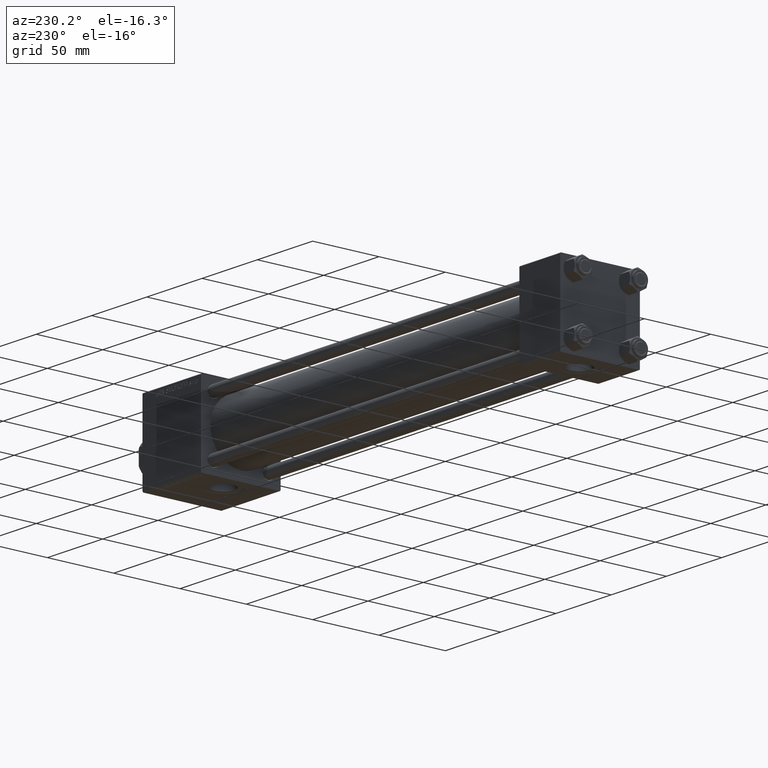
[diagram: clean part render]
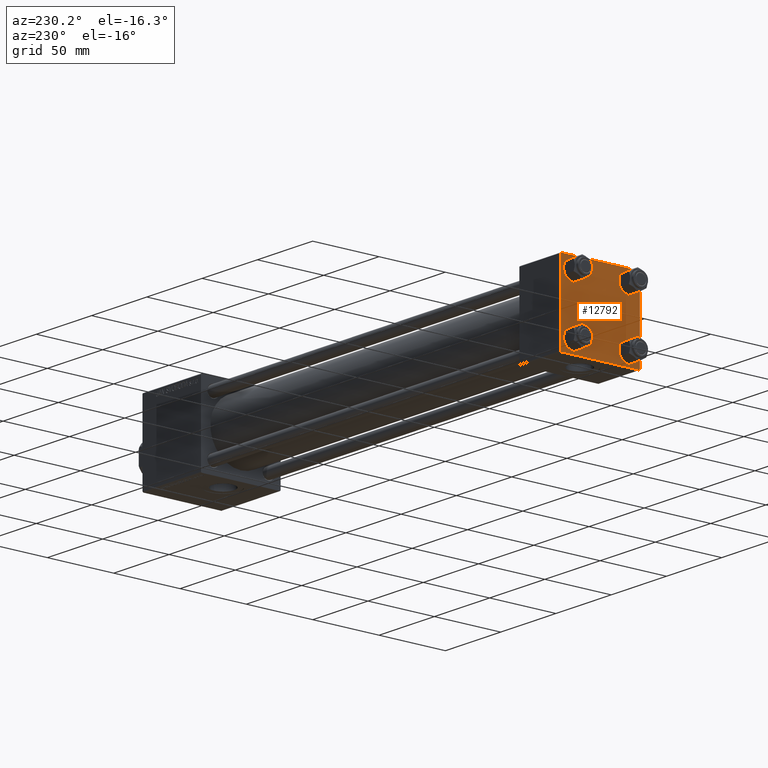
[diagram: same view with one face highlighted and labeled with its STEP entity id]
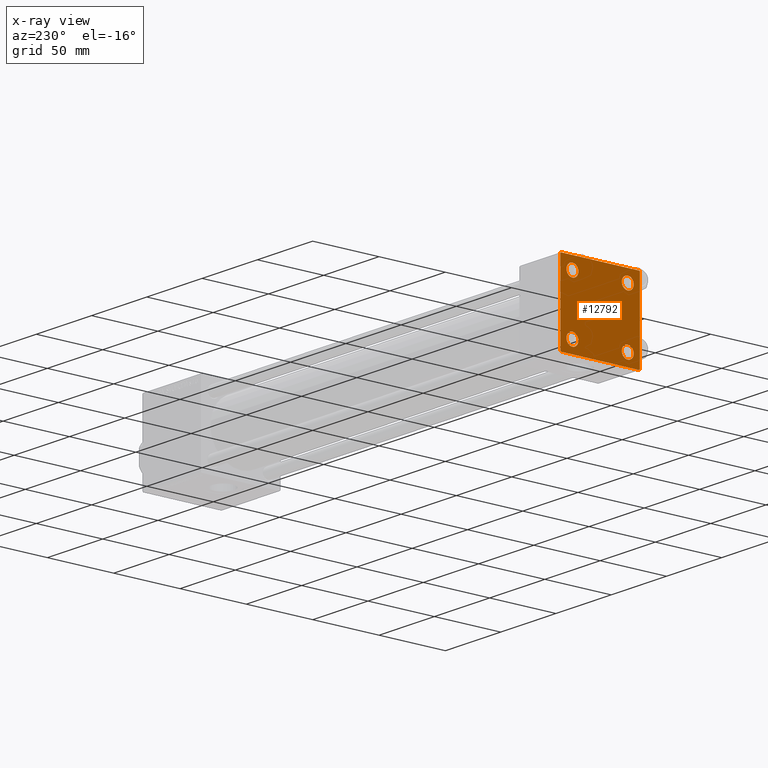
[diagram: x-ray of the same camera — body ghosted, the highlighted face saturated]
A machine part, auxiliary view. The second image highlights one B-rep face of the part: STEP entity #12792.
The next image is the same camera in x-ray: the body ghosted, the highlighted face saturated — about 0% of this face is hidden behind the body in this view.
In plain terms, the highlighted planar face has unit normal (-1, 0, 0).
Its self-contained STEP definition (entity closure, byte-faithful):
#17 = FACE_BOUND ( 'NONE', #5632, .T. ) ;
#619 = EDGE_CURVE ( 'NONE', #13524, #4512, #3954, .T. ) ;
#956 = EDGE_LOOP ( 'NONE', ( #42140, #7351, #2745, #31288, #7093, #26805, #4026, #45420 ) ) ;
#1490 = ORIENTED_EDGE ( 'NONE', *, *, #15973, .T. ) ;
#1701 = AXIS2_PLACEMENT_3D ( 'NONE', #34664, #47091, #23710 ) ;
#1746 = DIRECTION ( 'NONE',  ( 0.000000000000000000, 0.000000000000000000, 1.000000000000000000 ) ) ;
#2745 = ORIENTED_EDGE ( 'NONE', *, *, #37012, .T. ) ;
#3108 = DIRECTION ( 'NONE',  ( 0.000000000000000000, 0.000000000000000000, 1.000000000000000000 ) ) ;
#3454 = DIRECTION ( 'NONE',  ( 0.000000000000000000, -1.000000000000000000, -1.156482317317871725E-16 ) ) ;
#3516 = EDGE_LOOP ( 'NONE', ( #9679, #1490 ) ) ;
#3573 = FACE_BOUND ( 'NONE', #3516, .T. ) ;
#3954 = LINE ( 'NONE', #19653, #26514 ) ;
#4026 = ORIENTED_EDGE ( 'NONE', *, *, #38693, .F. ) ;
#4091 = CARTESIAN_POINT ( 'NONE',  ( 0.000000000000000000, 29.74999999999999645, 29.74999999999999645 ) ) ;
#4400 = CIRCLE ( 'NONE', #14120, 4.500000000000017764 ) ;
#4512 = VERTEX_POINT ( 'NONE', #24511 ) ;
#4804 = CARTESIAN_POINT ( 'NONE',  ( 0.000000000000000000, 20.84999999999999787, -20.85000000000000142 ) ) ;
#4844 = DIRECTION ( 'NONE',  ( 1.000000000000000000, -0.000000000000000000, 0.000000000000000000 ) ) ;
#5092 = DIRECTION ( 'NONE',  ( 1.000000000000000000, -0.000000000000000000, 0.000000000000000000 ) ) ;
#5291 = DIRECTION ( 'NONE',  ( 1.000000000000000000, -0.000000000000000000, 0.000000000000000000 ) ) ;
#5552 = CARTESIAN_POINT ( 'NONE',  ( 0.000000000000000000, 29.99999999999999289, 30.00000000000000000 ) ) ;
#5632 = EDGE_LOOP ( 'NONE', ( #39562, #23354 ) ) ;
#5745 = EDGE_CURVE ( 'NONE', #4512, #37535, #37678, .T. ) ;
#5783 = AXIS2_PLACEMENT_3D ( 'NONE', #19374, #7958, #27255 ) ;
#6686 = EDGE_LOOP ( 'NONE', ( #43654, #48863 ) ) ;
#6703 = AXIS2_PLACEMENT_3D ( 'NONE', #8898, #5092, #20817 ) ;
#7093 = ORIENTED_EDGE ( 'NONE', *, *, #34665, .F. ) ;
#7121 = DIRECTION ( 'NONE',  ( 1.000000000000000000, -0.000000000000000000, 0.000000000000000000 ) ) ;
#7351 = ORIENTED_EDGE ( 'NONE', *, *, #5745, .T. ) ;
#7603 = FACE_BOUND ( 'NONE', #6686, .T. ) ;
#7853 = EDGE_LOOP ( 'NONE', ( #23532, #39300 ) ) ;
#7863 = CIRCLE ( 'NONE', #31349, 4.500000000000017764 ) ;
#7958 = DIRECTION ( 'NONE',  ( 1.000000000000000000, -0.000000000000000000, 0.000000000000000000 ) ) ;
#8179 = CIRCLE ( 'NONE', #1701, 4.500000000000017764 ) ;
#8371 = VECTOR ( 'NONE', #47867, 1000.000000000000114 ) ;
#8407 = EDGE_CURVE ( 'NONE', #40028, #48465, #38736, .T. ) ;
#8898 = CARTESIAN_POINT ( 'NONE',  ( 0.000000000000000000, -20.84999999999999076, 20.85000000000000497 ) ) ;
#9617 = CARTESIAN_POINT ( 'NONE',  ( 0.000000000000000000, 29.49999999999999289, 30.00000000000000000 ) ) ;
#9679 = ORIENTED_EDGE ( 'NONE', *, *, #12724, .T. ) ;
#9848 = DIRECTION ( 'NONE',  ( 0.000000000000000000, 0.000000000000000000, -1.000000000000000000 ) ) ;
#10101 = CARTESIAN_POINT ( 'NONE',  ( 0.000000000000000000, -30.00000000000000000, 29.99999999999999289 ) ) ;
#10162 = CARTESIAN_POINT ( 'NONE',  ( 0.000000000000000000, 20.84999999999999787, -20.85000000000000142 ) ) ;
#10410 = DIRECTION ( 'NONE',  ( 0.000000000000000000, 0.000000000000000000, 1.000000000000000000 ) ) ;
#10425 = DIRECTION ( 'NONE',  ( 0.000000000000000000, 0.000000000000000000, 1.000000000000000000 ) ) ;
#10678 = VECTOR ( 'NONE', #9848, 1000.000000000000000 ) ;
#11036 = LINE ( 'NONE', #10101, #10678 ) ;
#11315 = CARTESIAN_POINT ( 'NONE',  ( 0.000000000000000000, -20.84999999999999076, 25.35000000000002274 ) ) ;
#11599 = VECTOR ( 'NONE', #31838, 1000.000000000000114 ) ;
#11895 = EDGE_CURVE ( 'NONE', #47679, #17020, #4400, .T. ) ;
#12092 = VERTEX_POINT ( 'NONE', #9617 ) ;
#12467 = VERTEX_POINT ( 'NONE', #41242 ) ;
#12724 = EDGE_CURVE ( 'NONE', #44260, #21782, #35208, .T. ) ;
#12792 = ADVANCED_FACE ( 'NONE', ( #7603, #17, #3573, #46230, #45980 ), #46477, .T. ) ;
#12886 = VERTEX_POINT ( 'NONE', #20270 ) ;
#13524 = VERTEX_POINT ( 'NONE', #23225 ) ;
#13776 = CARTESIAN_POINT ( 'NONE',  ( 0.000000000000000000, 29.74999999999957723, -29.75000000000040501 ) ) ;
#14120 = AXIS2_PLACEMENT_3D ( 'NONE', #34051, #7121, #10425 ) ;
#14898 = VERTEX_POINT ( 'NONE', #20860 ) ;
#15027 = AXIS2_PLACEMENT_3D ( 'NONE', #4804, #5291, #1746 ) ;
#15209 = DIRECTION ( 'NONE',  ( -0.000000000000000000, 0.000000000000000000, 1.000000000000000000 ) ) ;
#15336 = CARTESIAN_POINT ( 'NONE',  ( 0.000000000000000000, -29.75000000000001066, -29.75000000000001066 ) ) ;
#15973 = EDGE_CURVE ( 'NONE', #21782, #44260, #41825, .T. ) ;
#17020 = VERTEX_POINT ( 'NONE', #39558 ) ;
#19124 = EDGE_CURVE ( 'NONE', #12092, #13524, #42453, .T. ) ;
#19374 = CARTESIAN_POINT ( 'NONE',  ( 0.000000000000000000, -20.84999999999999076, -20.85000000000000497 ) ) ;
#19547 = DIRECTION ( 'NONE',  ( 0.000000000000000000, 0.7071067811865474617, -0.7071067811865474617 ) ) ;
#19653 = CARTESIAN_POINT ( 'NONE',  ( 0.000000000000000000, 29.99999999999999289, 30.00000000000000000 ) ) ;
#20270 = CARTESIAN_POINT ( 'NONE',  ( 0.000000000000000000, -30.00000000000000000, 29.49999999999999289 ) ) ;
#20817 = DIRECTION ( 'NONE',  ( 0.000000000000000000, 0.000000000000000000, 1.000000000000000000 ) ) ;
#20860 = CARTESIAN_POINT ( 'NONE',  ( 0.000000000000000000, -20.84999999999999076, -16.34999999999998721 ) ) ;
#21434 = LINE ( 'NONE', #47615, #8371 ) ;
#21539 = LINE ( 'NONE', #5552, #43918 ) ;
#21782 = VERTEX_POINT ( 'NONE', #39143 ) ;
#21895 = EDGE_CURVE ( 'NONE', #14898, #45606, #7863, .T. ) ;
#22381 = CARTESIAN_POINT ( 'NONE',  ( 0.000000000000000000, 20.84999999999999787, 16.34999999999998366 ) ) ;
#22594 = CARTESIAN_POINT ( 'NONE',  ( 0.000000000000000000, 0.000000000000000000, 0.000000000000000000 ) ) ;
#23225 = CARTESIAN_POINT ( 'NONE',  ( 0.000000000000000000, 29.99999999999999289, 29.50000000000000000 ) ) ;
#23354 = ORIENTED_EDGE ( 'NONE', *, *, #32758, .T. ) ;
#23469 = VECTOR ( 'NONE', #49104, 999.9999999999998863 ) ;
#23532 = ORIENTED_EDGE ( 'NONE', *, *, #26492, .T. ) ;
#23710 = DIRECTION ( 'NONE',  ( 0.000000000000000000, 0.000000000000000000, 1.000000000000000000 ) ) ;
#23874 = CARTESIAN_POINT ( 'NONE',  ( 0.000000000000000000, 20.84999999999999787, -16.34999999999998366 ) ) ;
#24196 = CIRCLE ( 'NONE', #41276, 4.500000000000017764 ) ;
#24511 = CARTESIAN_POINT ( 'NONE',  ( 0.000000000000000000, 29.99999999999999289, -29.50000000000000000 ) ) ;
#25094 = CARTESIAN_POINT ( 'NONE',  ( 0.000000000000000000, -20.84999999999999076, -25.35000000000002274 ) ) ;
#25656 = DIRECTION ( 'NONE',  ( 1.000000000000000000, -0.000000000000000000, 0.000000000000000000 ) ) ;
#26490 = VECTOR ( 'NONE', #19547, 1000.000000000000114 ) ;
#26492 = EDGE_CURVE ( 'NONE', #12467, #44147, #24196, .T. ) ;
#26514 = VECTOR ( 'NONE', #27288, 1000.000000000000000 ) ;
#26805 = ORIENTED_EDGE ( 'NONE', *, *, #43209, .T. ) ;
#26939 = VECTOR ( 'NONE', #3454, 1000.000000000000000 ) ;
#27042 = CARTESIAN_POINT ( 'NONE',  ( 0.000000000000000000, 29.99999999999999289, -30.00000000000000000 ) ) ;
#27255 = DIRECTION ( 'NONE',  ( 0.000000000000000000, 0.000000000000000000, 1.000000000000000000 ) ) ;
#27288 = DIRECTION ( 'NONE',  ( 0.000000000000000000, 0.000000000000000000, -1.000000000000000000 ) ) ;
#29911 = DIRECTION ( 'NONE',  ( 0.000000000000000000, -1.000000000000000000, -1.156482317317871725E-16 ) ) ;
#30421 = VERTEX_POINT ( 'NONE', #34881 ) ;
#31288 = ORIENTED_EDGE ( 'NONE', *, *, #8407, .T. ) ;
#31349 = AXIS2_PLACEMENT_3D ( 'NONE', #40147, #4844, #35830 ) ;
#31838 = DIRECTION ( 'NONE',  ( 0.000000000000000000, -0.7071067811865474617, 0.7071067811865474617 ) ) ;
#32758 = EDGE_CURVE ( 'NONE', #45606, #14898, #47951, .T. ) ;
#33051 = CARTESIAN_POINT ( 'NONE',  ( 0.000000000000000000, 29.49999999999997868, -30.00000000000000000 ) ) ;
#34051 = CARTESIAN_POINT ( 'NONE',  ( 0.000000000000000000, -20.84999999999999076, 20.85000000000000497 ) ) ;
#34664 = CARTESIAN_POINT ( 'NONE',  ( 0.000000000000000000, 20.84999999999999787, 20.85000000000000142 ) ) ;
#34665 = EDGE_CURVE ( 'NONE', #12886, #48465, #11036, .T. ) ;
#34881 = CARTESIAN_POINT ( 'NONE',  ( 0.000000000000000000, -29.49999999999998579, 29.99999999999999289 ) ) ;
#34888 = EDGE_CURVE ( 'NONE', #44147, #12467, #8179, .T. ) ;
#35208 = CIRCLE ( 'NONE', #41715, 4.500000000000017764 ) ;
#35830 = DIRECTION ( 'NONE',  ( 0.000000000000000000, 0.000000000000000000, 1.000000000000000000 ) ) ;
#37012 = EDGE_CURVE ( 'NONE', #37535, #40028, #49420, .T. ) ;
#37535 = VERTEX_POINT ( 'NONE', #33051 ) ;
#37542 = CIRCLE ( 'NONE', #6703, 4.500000000000017764 ) ;
#37678 = LINE ( 'NONE', #13776, #23469 ) ;
#38693 = EDGE_CURVE ( 'NONE', #12092, #30421, #21539, .T. ) ;
#38736 = LINE ( 'NONE', #15336, #11599 ) ;
#38861 = DIRECTION ( 'NONE',  ( -1.000000000000000000, 0.000000000000000000, -0.000000000000000000 ) ) ;
#39143 = CARTESIAN_POINT ( 'NONE',  ( 0.000000000000000000, 20.84999999999999787, -25.35000000000001918 ) ) ;
#39300 = ORIENTED_EDGE ( 'NONE', *, *, #34888, .T. ) ;
#39321 = AXIS2_PLACEMENT_3D ( 'NONE', #22594, #38861, #15209 ) ;
#39558 = CARTESIAN_POINT ( 'NONE',  ( 0.000000000000000000, -20.84999999999999076, 16.34999999999998721 ) ) ;
#39562 = ORIENTED_EDGE ( 'NONE', *, *, #21895, .T. ) ;
#40028 = VERTEX_POINT ( 'NONE', #49121 ) ;
#40147 = CARTESIAN_POINT ( 'NONE',  ( 0.000000000000000000, -20.84999999999999076, -20.85000000000000497 ) ) ;
#41242 = CARTESIAN_POINT ( 'NONE',  ( 0.000000000000000000, 20.84999999999999787, 25.35000000000001918 ) ) ;
#41276 = AXIS2_PLACEMENT_3D ( 'NONE', #49568, #42705, #3108 ) ;
#41715 = AXIS2_PLACEMENT_3D ( 'NONE', #10162, #25656, #10410 ) ;
#41825 = CIRCLE ( 'NONE', #15027, 4.500000000000017764 ) ;
#42140 = ORIENTED_EDGE ( 'NONE', *, *, #619, .T. ) ;
#42200 = EDGE_CURVE ( 'NONE', #17020, #47679, #37542, .T. ) ;
#42453 = LINE ( 'NONE', #4091, #26490 ) ;
#42705 = DIRECTION ( 'NONE',  ( 1.000000000000000000, -0.000000000000000000, 0.000000000000000000 ) ) ;
#43122 = CARTESIAN_POINT ( 'NONE',  ( 0.000000000000000000, -30.00000000000000000, -29.50000000000001776 ) ) ;
#43209 = EDGE_CURVE ( 'NONE', #12886, #30421, #21434, .T. ) ;
#43654 = ORIENTED_EDGE ( 'NONE', *, *, #11895, .T. ) ;
#43918 = VECTOR ( 'NONE', #29911, 1000.000000000000000 ) ;
#44147 = VERTEX_POINT ( 'NONE', #22381 ) ;
#44260 = VERTEX_POINT ( 'NONE', #23874 ) ;
#45420 = ORIENTED_EDGE ( 'NONE', *, *, #19124, .T. ) ;
#45606 = VERTEX_POINT ( 'NONE', #25094 ) ;
#45980 = FACE_OUTER_BOUND ( 'NONE', #956, .T. ) ;
#46230 = FACE_BOUND ( 'NONE', #7853, .T. ) ;
#46477 = PLANE ( 'NONE',  #39321 ) ;
#47091 = DIRECTION ( 'NONE',  ( 1.000000000000000000, -0.000000000000000000, 0.000000000000000000 ) ) ;
#47615 = CARTESIAN_POINT ( 'NONE',  ( -0.000000000000000000, -29.74999999999999645, 29.74999999999999645 ) ) ;
#47679 = VERTEX_POINT ( 'NONE', #11315 ) ;
#47867 = DIRECTION ( 'NONE',  ( -0.000000000000000000, 0.7071067811865474617, 0.7071067811865474617 ) ) ;
#47951 = CIRCLE ( 'NONE', #5783, 4.500000000000017764 ) ;
#48465 = VERTEX_POINT ( 'NONE', #43122 ) ;
#48863 = ORIENTED_EDGE ( 'NONE', *, *, #42200, .T. ) ;
#49104 = DIRECTION ( 'NONE',  ( -0.000000000000000000, -0.7071067811865574537, -0.7071067811865376918 ) ) ;
#49121 = CARTESIAN_POINT ( 'NONE',  ( 0.000000000000000000, -29.50000000000000000, -30.00000000000000711 ) ) ;
#49420 = LINE ( 'NONE', #27042, #26939 ) ;
#49568 = CARTESIAN_POINT ( 'NONE',  ( 0.000000000000000000, 20.84999999999999787, 20.85000000000000142 ) ) ;